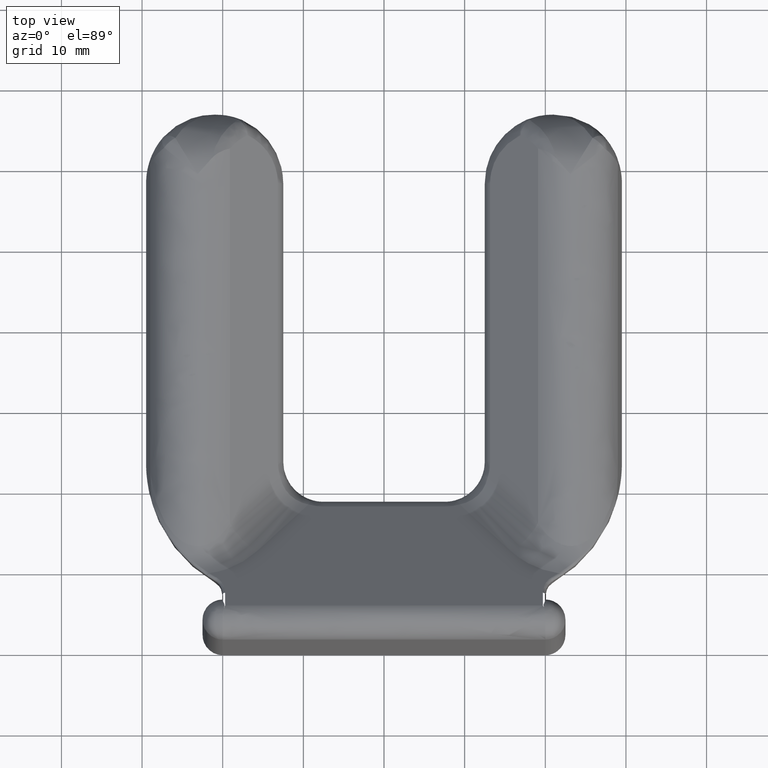
[diagram: clean part render]
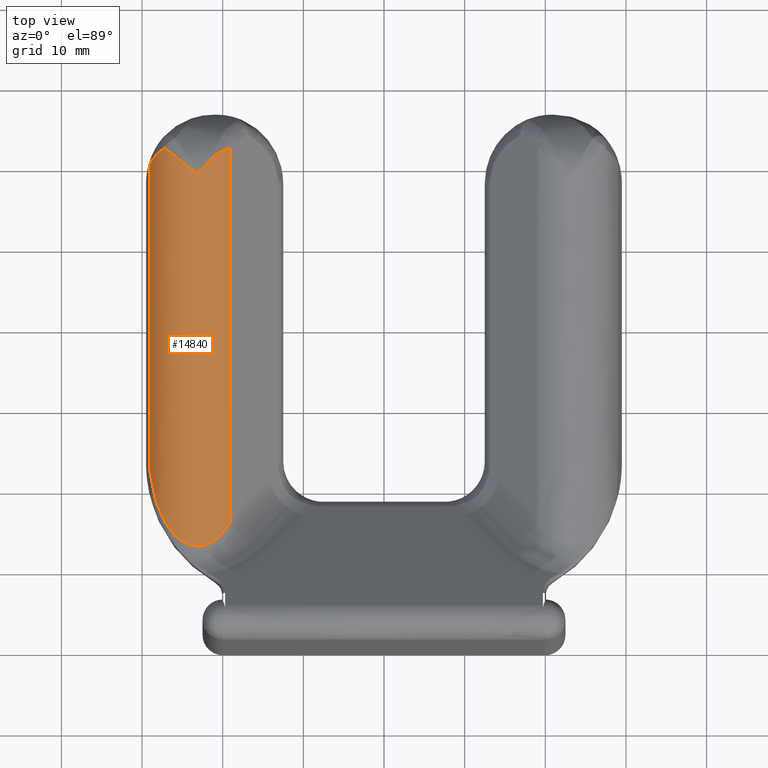
[diagram: same view with one face highlighted and labeled with its STEP entity id]
A machine part, top view. The second image highlights one B-rep face of the part: STEP entity #14840.
In plain terms, the highlighted face is a freeform B-spline surface patch.
Its self-contained STEP definition (entity closure, byte-faithful):
#10589=CARTESIAN_POINT('',(-19.089266229424499,62.706998055666702,8.452359122699820));
#10590=VERTEX_POINT('',#10589);
#10605=CARTESIAN_POINT('',(-21.359995803278451,61.462334863744402,9.738732063181590));
#10606=VERTEX_POINT('',#10605);
#10620=CARTESIAN_POINT('',(-19.089266229424499,62.706998055666702,8.452359122699820));
#10621=CARTESIAN_POINT('',(-19.111864835393440,62.702568532170588,8.472773386400034));
#10622=CARTESIAN_POINT('',(-19.134904905744818,62.697961309928573,8.493270110304639));
#10623=CARTESIAN_POINT('',(-19.181025336065701,62.688264327581983,8.533666545314325));
#10624=CARTESIAN_POINT('',(-19.250538085925609,62.673080273249973,8.593615129696637));
#10625=CARTESIAN_POINT('',(-19.321022324565440,62.655919282436777,8.651635798265916));
#10626=CARTESIAN_POINT('',(-19.463219920131291,62.618784518186906,8.765129245509469));
#10627=CARTESIAN_POINT('',(-19.559658014750539,62.590285204642690,8.837395886359913));
#10628=CARTESIAN_POINT('',(-19.706501610895771,62.541101105798013,8.940764004463141));
#10629=CARTESIAN_POINT('',(-19.755876338953719,62.523605522695441,8.974419109386982));
#10630=CARTESIAN_POINT('',(-19.854597230598550,62.486581474964893,9.039602581015638));
#10631=CARTESIAN_POINT('',(-19.904016712014311,62.467030924364508,9.071185249966515));
#10632=CARTESIAN_POINT('',(-20.052334505229009,62.405118461422077,9.162988333284213));
#10633=CARTESIAN_POINT('',(-20.151295074574911,62.359503378980477,9.220265322270535));
#10634=CARTESIAN_POINT('',(-20.348699547121619,62.258662599067392,9.327365699603414));
#10635=CARTESIAN_POINT('',(-20.447145671560069,62.203440755879022,9.377188506836500));
#10636=CARTESIAN_POINT('',(-20.593830126751751,62.112489444380167,9.446598255707045));
#10637=CARTESIAN_POINT('',(-20.642662457986919,62.080740543062802,9.468889627861280));
#10638=CARTESIAN_POINT('',(-20.738928025125428,62.015013164623511,9.511331066756791));
#10639=CARTESIAN_POINT('',(-20.786452403646070,61.980984577007483,9.531527680000945));
#10640=CARTESIAN_POINT('',(-21.020768533017339,61.804840533175067,9.627687667705427));
#10641=CARTESIAN_POINT('',(-21.197796521176560,61.644924454062867,9.689234179337934));
#10642=CARTESIAN_POINT('',(-21.359995803278451,61.462334863744402,9.738732063181590));
#10643=B_SPLINE_CURVE_WITH_KNOTS('',3,(#10620,#10621,#10622,#10623,#10624,#10625,#10626,#10627,#10628,#10629,#10630,#10631,#10632,#10633,#10634,#10635,#10636,#10637,#10638,#10639,#10640,#10641,#10642),.UNSPECIFIED.,.F.,.U.,(4,2,1,2,2,2,2,2,2,2,2,4),(0.0,0.031249999999997,0.062499999999994,0.124999999999994,0.249999999999994,0.312499999999995,0.374999999999996,0.499999999999998,0.625000000000000,0.687500000000001,0.750000000000002,1.0),.UNSPECIFIED.);
#10644=EDGE_CURVE('',#10590,#10606,#10643,.T.);
#12289=CARTESIAN_POINT('',(-29.007300615678851,60.896823467464912,5.112114829886410));
#12290=VERTEX_POINT('',#12289);
#12444=CARTESIAN_POINT('',(-27.249537970974099,62.804879013630590,8.344504764335600));
#12445=VERTEX_POINT('',#12444);
#12480=CARTESIAN_POINT('',(-27.249537970974099,62.804879013630590,8.344504764335600));
#12481=CARTESIAN_POINT('',(-27.473969960270662,62.635612232854882,8.130726621092180));
#12482=CARTESIAN_POINT('',(-27.677693684188089,62.464212145116043,7.903788250562750));
#12483=CARTESIAN_POINT('',(-28.047736333529190,62.120831497785602,7.423899330662081));
#12484=CARTESIAN_POINT('',(-28.214045702733412,61.948739297664552,7.171018483726465));
#12485=CARTESIAN_POINT('',(-28.436209561292578,61.695318281490657,6.769191578011840));
#12486=CARTESIAN_POINT('',(-28.505692979571940,61.611663936040863,6.631460715746150));
#12487=CARTESIAN_POINT('',(-28.602916520364921,61.488633080537099,6.418242774921709));
#12488=CARTESIAN_POINT('',(-28.634095615620499,61.448108870092071,6.346178075075119));
#12489=CARTESIAN_POINT('',(-28.693652584079199,61.368752214973007,6.200717789099386));
#12490=CARTESIAN_POINT('',(-28.722082501870879,61.329854088444627,6.127210264479434));
#12491=CARTESIAN_POINT('',(-28.803312037847299,61.215999550348513,5.904123474475342));
#12492=CARTESIAN_POINT('',(-28.852068702183509,61.143833466153687,5.752007958895232));
#12493=CARTESIAN_POINT('',(-28.938363390319982,61.010630997808327,5.439195574734168));
#12494=CARTESIAN_POINT('',(-28.975914244192840,60.949569693452482,5.278514076615447));
#12495=CARTESIAN_POINT('',(-29.007300615678851,60.896823467464912,5.112114829886341));
#12496=B_SPLINE_CURVE_WITH_KNOTS('',3,(#12480,#12481,#12482,#12483,#12484,#12485,#12486,#12487,#12488,#12489,#12490,#12491,#12492,#12493,#12494,#12495),.UNSPECIFIED.,.F.,.U.,(4,2,2,2,2,2,2,4),(0.0,0.249999999999999,0.499999999999998,0.624999999999999,0.687499999999999,0.750000000000000,0.875000000000000,1.0),.UNSPECIFIED.);
#12497=EDGE_CURVE('',#12445,#12290,#12496,.T.);
#12584=CARTESIAN_POINT('',(-23.111268000000148,59.500000000000000,10.0));
#12585=VERTEX_POINT('',#12584);
#12610=CARTESIAN_POINT('',(-23.111268000000148,59.500000000000000,10.0));
#12611=CARTESIAN_POINT('',(-23.157571256471240,59.536196925997139,10.0));
#12612=CARTESIAN_POINT('',(-23.204111117720270,59.572578803181422,9.999461395613933));
#12613=CARTESIAN_POINT('',(-23.296970577880629,59.645174384296993,9.997305347782318));
#12614=CARTESIAN_POINT('',(-23.343392255419229,59.681467881582613,9.995688102204579));
#12615=CARTESIAN_POINT('',(-23.482588368980480,59.790306511671233,9.989219576795364));
#12616=CARTESIAN_POINT('',(-23.575338157689540,59.862844402420627,9.982748486491845));
#12617=CARTESIAN_POINT('',(-23.852999458592990,60.080094613574843,9.956878100049565));
#12618=CARTESIAN_POINT('',(-24.037559049555981,60.224627939507663,9.931002704742834));
#12619=CARTESIAN_POINT('',(-24.587612544037821,60.656171339904077,9.827489987628443));
#12620=CARTESIAN_POINT('',(-24.947054034771782,60.939202877216651,9.724710875953329));
#12621=CARTESIAN_POINT('',(-25.386333857573788,61.287834506347693,9.552744988280773));
#12622=CARTESIAN_POINT('',(-25.473684804250802,61.357301274000740,9.516161062962924));
#12623=CARTESIAN_POINT('',(-25.647335748165059,61.495726315517651,9.438511414557466));
#12624=CARTESIAN_POINT('',(-25.733768810881021,61.564791404315173,9.397375358234582));
#12625=CARTESIAN_POINT('',(-25.990143606558920,61.770214836081763,9.267709206567741));
#12626=CARTESIAN_POINT('',(-26.157264288156171,61.904878982506347,9.172929401133132));
#12627=CARTESIAN_POINT('',(-26.483599335846652,62.169736611690197,8.966354129322202));
#12628=CARTESIAN_POINT('',(-26.642815379380579,62.299930114385191,8.854561156656786));
#12629=CARTESIAN_POINT('',(-26.875302018839690,62.491867612747413,8.673509990804984));
#12630=CARTESIAN_POINT('',(-26.951739375181710,62.555287218302382,8.610928853028527));
#12631=CARTESIAN_POINT('',(-27.102402296154789,62.680997666564352,8.481153010257327));
#12632=CARTESIAN_POINT('',(-27.176744941040319,62.743387888222827,8.413842289833092));
#12633=CARTESIAN_POINT('',(-27.249537970974089,62.804879013630590,8.344504764335591));
#12634=B_SPLINE_CURVE_WITH_KNOTS('',3,(#12610,#12611,#12612,#12613,#12614,#12615,#12616,#12617,#12618,#12619,#12620,#12621,#12622,#12623,#12624,#12625,#12626,#12627,#12628,#12629,#12630,#12631,#12632,#12633),.UNSPECIFIED.,.F.,.U.,(4,2,2,2,2,2,2,2,2,2,2,4),(0.0,0.031250000000000,0.062500000000000,0.125000000000000,0.250000000000000,0.500000000000000,0.562500000000000,0.625000000000001,0.750000000000000,0.875000000000000,0.937500000000000,1.0),.UNSPECIFIED.);
#12635=EDGE_CURVE('',#12585,#12445,#12634,.T.);
#12838=CARTESIAN_POINT('',(-29.007300615678851,22.532559565872202,5.112114829886410));
#12839=VERTEX_POINT('',#12838);
#14660=CARTESIAN_POINT('',(-19.089266229424499,16.270703985239098,8.452359122699820));
#14661=VERTEX_POINT('',#14660);
#14662=CARTESIAN_POINT('',(-29.007300615678851,22.532559565872202,5.112114829886410));
#14663=CARTESIAN_POINT('',(-28.356058045776976,16.059973362845046,8.564768575410394));
#14664=CARTESIAN_POINT('',(-25.026289118948419,13.957688643447559,9.686184495246449));
#14665=CARTESIAN_POINT('',(-21.696520192119859,11.855403924050075,10.807600415082501));
#14666=CARTESIAN_POINT('',(-19.089266229424499,16.270703985239098,8.452359122699820));
#14674=(BOUNDED_CURVE()B_SPLINE_CURVE(2,(#14662,#14663,#14664,#14665,#14666),.UNSPECIFIED.,.F.,.U.)B_SPLINE_CURVE_WITH_KNOTS((3,2,3),(0.0,0.500000000000000,1.0),.UNSPECIFIED.)CURVE()GEOMETRIC_REPRESENTATION_ITEM()RATIONAL_B_SPLINE_CURVE((1.0,0.862930384404610,1.0,0.862930384404610,1.0))REPRESENTATION_ITEM(''));
#14675=EDGE_CURVE('',#12839,#14661,#14674,.T.);
#14803=CARTESIAN_POINT('',(-29.045363180171648,64.040761877305840,4.886856466777576));
#14804=CARTESIAN_POINT('',(-29.045363180171648,12.102784531353610,4.886856466777576));
#14805=CARTESIAN_POINT('',(-27.266604292052730,64.040761877305840,16.788810097477015));
#14806=CARTESIAN_POINT('',(-27.266604292052730,12.102784531353608,16.788810097477015));
#14807=CARTESIAN_POINT('',(-18.831765305075059,64.040761877305840,8.205455585799015));
#14808=CARTESIAN_POINT('',(-18.831765305075059,12.102784531353610,8.205455585799015));
#14816=(BOUNDED_SURFACE()B_SPLINE_SURFACE(1,2,((#14803,#14805,#14807),(#14804,#14806,#14808)),.UNSPECIFIED.,.F.,.F.,.U.)B_SPLINE_SURFACE_WITH_KNOTS((2,2),(3,3),(0.0,51.937977345952227),(0.0,14.851650641251361),.UNSPECIFIED.)GEOMETRIC_REPRESENTATION_ITEM()RATIONAL_B_SPLINE_SURFACE(((1.0,0.446197813109809,1.0),(1.0,0.446197813109809,1.0)))REPRESENTATION_ITEM('')SURFACE());
#14817=CARTESIAN_POINT('',(-19.089266229424499,62.706998055666702,8.452359122699820));
#14818=CARTESIAN_POINT('',(-19.089266229424499,16.270703985239098,8.452359122699820));
#14819=QUASI_UNIFORM_CURVE('',1,(#14817,#14818),.UNSPECIFIED.,.F.,.U.);
#14820=EDGE_CURVE('',#10590,#14661,#14819,.T.);
#14821=ORIENTED_EDGE('',*,*,#14820,.F.);
#14822=ORIENTED_EDGE('',*,*,#10644,.T.);
#14823=CARTESIAN_POINT('',(-23.111268000000148,59.500000000000000,10.0));
#14824=CARTESIAN_POINT('',(-22.522490573526611,60.157390816407002,10.000898073397130));
#14825=CARTESIAN_POINT('',(-21.934843897049319,60.815861197797162,9.913200223511558));
#14826=CARTESIAN_POINT('',(-21.359995803278451,61.462334863744402,9.738732063181590));
#14827=B_SPLINE_CURVE_WITH_KNOTS('',3,(#14823,#14824,#14825,#14826),.UNSPECIFIED.,.F.,.U.,(4,4),(7.956444E-010,2.647508967643694),.UNSPECIFIED.);
#14828=EDGE_CURVE('',#12585,#10606,#14827,.T.);
#14829=ORIENTED_EDGE('',*,*,#14828,.F.);
#14830=ORIENTED_EDGE('',*,*,#12635,.T.);
#14831=ORIENTED_EDGE('',*,*,#12497,.T.);
#14832=CARTESIAN_POINT('',(-29.007300615678851,60.896823467464912,5.112114829886410));
#14833=CARTESIAN_POINT('',(-29.007300615678851,22.532559565872202,5.112114829886410));
#14834=QUASI_UNIFORM_CURVE('',1,(#14832,#14833),.UNSPECIFIED.,.F.,.U.);
#14835=EDGE_CURVE('',#12290,#12839,#14834,.T.);
#14836=ORIENTED_EDGE('',*,*,#14835,.T.);
#14837=ORIENTED_EDGE('',*,*,#14675,.T.);
#14838=EDGE_LOOP('',(#14821,#14822,#14829,#14830,#14831,#14836,#14837));
#14839=FACE_OUTER_BOUND('',#14838,.T.);
#14840=ADVANCED_FACE('',(#14839),#14816,.T.);